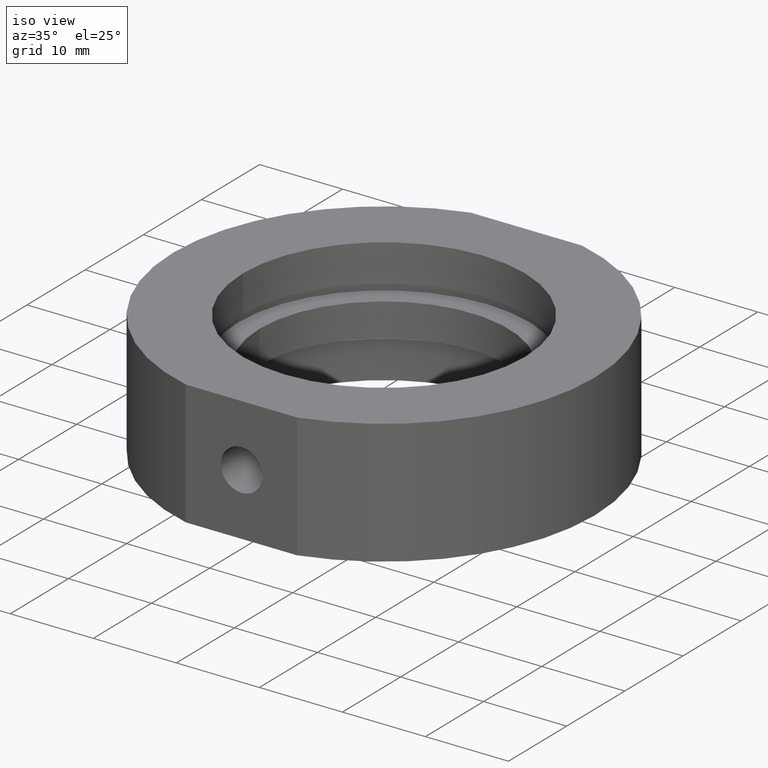
[diagram: clean part render]
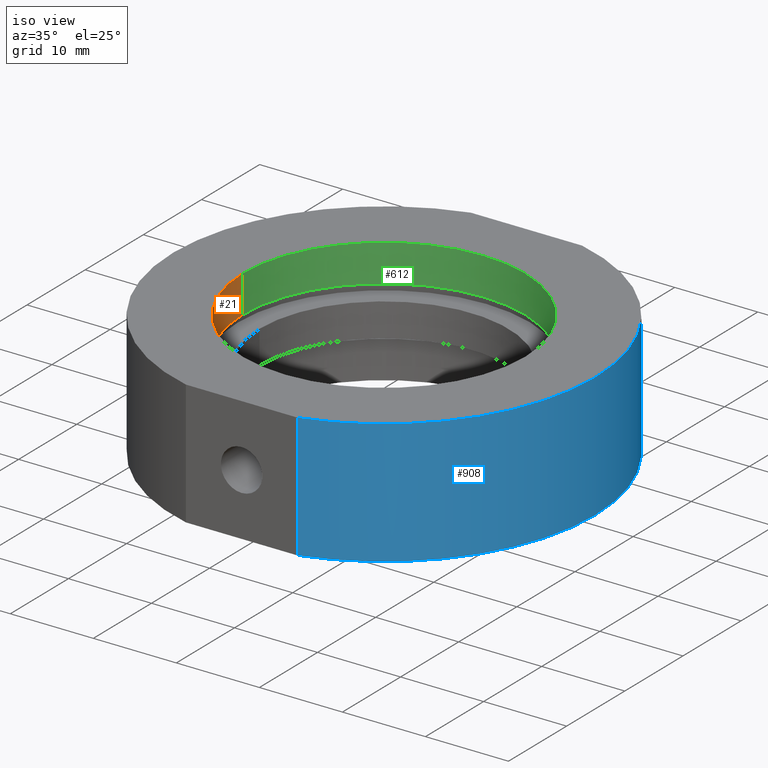
[diagram: same view with three faces highlighted in distinct colors, each labeled with its STEP entity id]
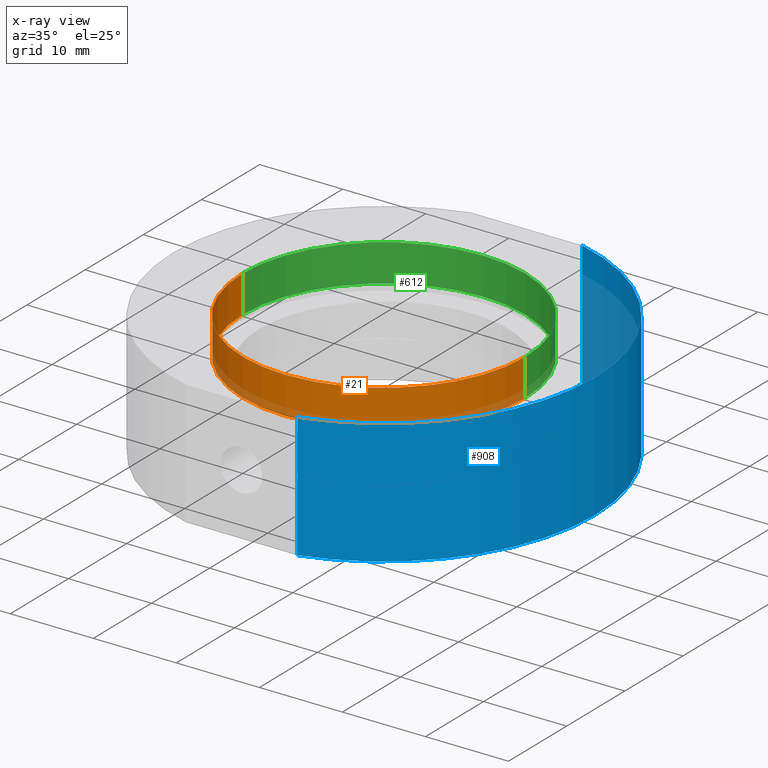
[diagram: x-ray of the same camera — body ghosted, the three highlighted faces saturated]
A machine part, iso view with three faces highlighted in distinct colors.
The next image is the same camera in x-ray (body ghosted, the three faces saturated) — at least one of them is partly hidden behind the body in this view.
Their STEP definitions:

[orange] entity #21 — the highlighted cylindrical surface (partial cylindrical patch) has radius 17 mm, axis along (-0, -0, -1).
#8 = CARTESIAN_POINT ( 'NONE',  ( 0.0000000000000000000, 0.0000000000000000000, -31.93906810035839800 ) ) ;
#21 = ADVANCED_FACE ( 'NONE', ( #341 ), #727, .F. ) ;
#26 = ORIENTED_EDGE ( 'NONE', *, *, #662, .T. ) ;
#102 = CARTESIAN_POINT ( 'NONE',  ( -16.99999999999999300, 0.0000000000000000000, 2.999999999999997800 ) ) ;
#139 = EDGE_CURVE ( 'NONE', #782, #576, #573, .T. ) ;
#141 = DIRECTION ( 'NONE',  ( -1.224646799147350500E-016, -0.0000000000000000000, -1.000000000000000000 ) ) ;
#191 = AXIS2_PLACEMENT_3D ( 'NONE', #8, #448, #844 ) ;
#217 = CIRCLE ( 'NONE', #944, 16.99999999999999600 ) ;
#223 = CARTESIAN_POINT ( 'NONE',  ( -16.99999999999999300, 0.0000000000000000000, 7.500000000000001800 ) ) ;
#250 = CARTESIAN_POINT ( 'NONE',  ( 4.278801791429520600E-015, 0.0000000000000000000, 2.999999999999995600 ) ) ;
#277 = LINE ( 'NONE', #505, #902 ) ;
#279 = EDGE_LOOP ( 'NONE', ( #509, #633, #26, #454 ) ) ;
#327 = CARTESIAN_POINT ( 'NONE',  ( 4.829892851045828800E-015, 0.0000000000000000000, 7.500000000000000000 ) ) ;
#341 = FACE_OUTER_BOUND ( 'NONE', #279, .T. ) ;
#392 = EDGE_CURVE ( 'NONE', #676, #906, #277, .T. ) ;
#447 = CARTESIAN_POINT ( 'NONE',  ( 17.00000000000000000, 2.081899558550499900E-015, 2.999999999999993300 ) ) ;
#448 = DIRECTION ( 'NONE',  ( -1.224646799147350500E-016, -0.0000000000000000000, -1.000000000000000000 ) ) ;
#454 = ORIENTED_EDGE ( 'NONE', *, *, #392, .F. ) ;
#505 = CARTESIAN_POINT ( 'NONE',  ( -16.99999999999999600, 0.0000000000000000000, -31.93906810035839800 ) ) ;
#506 = VECTOR ( 'NONE', #141, 1000.000000000000000 ) ;
#509 = ORIENTED_EDGE ( 'NONE', *, *, #712, .F. ) ;
#531 = AXIS2_PLACEMENT_3D ( 'NONE', #250, #761, #835 ) ;
#553 = DIRECTION ( 'NONE',  ( -1.000000000000000000, 0.0000000000000000000, 1.020425574104004400E-016 ) ) ;
#569 = DIRECTION ( 'NONE',  ( -1.224646799147350500E-016, -0.0000000000000000000, -1.000000000000000000 ) ) ;
#573 = LINE ( 'NONE', #618, #506 ) ;
#576 = VERTEX_POINT ( 'NONE', #447 ) ;
#618 = CARTESIAN_POINT ( 'NONE',  ( 16.99999999999999600, 2.081899558550499900E-015, -31.93906810035839800 ) ) ;
#624 = CARTESIAN_POINT ( 'NONE',  ( 17.00000000000000000, 2.081899558550499900E-015, 7.499999999999998200 ) ) ;
#633 = ORIENTED_EDGE ( 'NONE', *, *, #139, .T. ) ;
#662 = EDGE_CURVE ( 'NONE', #576, #906, #813, .T. ) ;
#676 = VERTEX_POINT ( 'NONE', #223 ) ;
#690 = DIRECTION ( 'NONE',  ( -1.224646799147350500E-016, -0.0000000000000000000, -1.000000000000000000 ) ) ;
#712 = EDGE_CURVE ( 'NONE', #782, #676, #217, .T. ) ;
#727 = CYLINDRICAL_SURFACE ( 'NONE', #191, 16.99999999999999600 ) ;
#761 = DIRECTION ( 'NONE',  ( -1.224646799147350500E-016, -0.0000000000000000000, -1.000000000000000000 ) ) ;
#782 = VERTEX_POINT ( 'NONE', #624 ) ;
#813 = CIRCLE ( 'NONE', #531, 16.99999999999999600 ) ;
#835 = DIRECTION ( 'NONE',  ( -1.000000000000000000, 0.0000000000000000000, 1.275531967630005500E-016 ) ) ;
#844 = DIRECTION ( 'NONE',  ( -1.000000000000000000, 0.0000000000000000000, 0.0000000000000000000 ) ) ;
#902 = VECTOR ( 'NONE', #569, 1000.000000000000000 ) ;
#906 = VERTEX_POINT ( 'NONE', #102 ) ;
#944 = AXIS2_PLACEMENT_3D ( 'NONE', #327, #690, #553 ) ;

[blue] entity #908 — the highlighted cylindrical surface (partial cylindrical patch) has radius 25.4 mm, axis along (-0, -0, -1).
#7 = ORIENTED_EDGE ( 'NONE', *, *, #954, .F. ) ;
#45 = VECTOR ( 'NONE', #246, 1000.000000000000000 ) ;
#72 = DIRECTION ( 'NONE',  ( -1.224646799147350500E-016, -0.0000000000000000000, -1.000000000000000000 ) ) ;
#83 = CARTESIAN_POINT ( 'NONE',  ( 6.701492371106626300, -24.49999999999999300, -31.93906810035839800 ) ) ;
#88 = LINE ( 'NONE', #541, #45 ) ;
#100 = EDGE_CURVE ( 'NONE', #689, #665, #88, .T. ) ;
#108 = CARTESIAN_POINT ( 'NONE',  ( 4.829892851045827200E-015, 0.0000000000000000000, 7.499999999999992900 ) ) ;
#182 = DIRECTION ( 'NONE',  ( -1.224646799147350500E-016, -0.0000000000000000000, -1.000000000000000000 ) ) ;
#198 = ORIENTED_EDGE ( 'NONE', *, *, #631, .T. ) ;
#220 = CARTESIAN_POINT ( 'NONE',  ( 6.701492371106600600, 24.50000000000000000, 7.500000000000000000 ) ) ;
#239 = CIRCLE ( 'NONE', #786, 25.39999999999999900 ) ;
#240 = VECTOR ( 'NONE', #72, 1000.000000000000000 ) ;
#246 = DIRECTION ( 'NONE',  ( 1.224646799147350500E-016, 0.0000000000000000000, 1.000000000000000000 ) ) ;
#309 = FACE_OUTER_BOUND ( 'NONE', #666, .T. ) ;
#329 = ORIENTED_EDGE ( 'NONE', *, *, #100, .T. ) ;
#394 = LINE ( 'NONE', #83, #240 ) ;
#411 = CARTESIAN_POINT ( 'NONE',  ( 6.701492371106597900, -24.50000000000000000, -7.500000000000000900 ) ) ;
#413 = CARTESIAN_POINT ( 'NONE',  ( 6.701492371106600600, -24.50000000000000000, 7.500000000000000000 ) ) ;
#419 = DIRECTION ( 'NONE',  ( -1.224646799147350500E-016, -0.0000000000000000000, -1.000000000000000000 ) ) ;
#425 = CARTESIAN_POINT ( 'NONE',  ( 2.992922652324802700E-015, 0.0000000000000000000, -7.500000000000000000 ) ) ;
#478 = CARTESIAN_POINT ( 'NONE',  ( 6.701492371106597900, 24.50000000000000000, -7.500000000000000900 ) ) ;
#484 = DIRECTION ( 'NONE',  ( -1.224646799147350500E-016, -0.0000000000000000000, -1.000000000000000000 ) ) ;
#541 = CARTESIAN_POINT ( 'NONE',  ( 6.701492371106626300, 24.49999999999999300, -31.93906810035839800 ) ) ;
#567 = CARTESIAN_POINT ( 'NONE',  ( 0.0000000000000000000, 0.0000000000000000000, -31.93906810035839800 ) ) ;
#586 = CYLINDRICAL_SURFACE ( 'NONE', #797, 25.39999999999999900 ) ;
#631 = EDGE_CURVE ( 'NONE', #882, #883, #394, .T. ) ;
#660 = DIRECTION ( 'NONE',  ( -1.000000000000000000, 0.0000000000000000000, 1.365923996832131600E-016 ) ) ;
#665 = VERTEX_POINT ( 'NONE', #220 ) ;
#666 = EDGE_LOOP ( 'NONE', ( #718, #198, #7, #329 ) ) ;
#689 = VERTEX_POINT ( 'NONE', #478 ) ;
#710 = CIRCLE ( 'NONE', #910, 25.39999999999999900 ) ;
#718 = ORIENTED_EDGE ( 'NONE', *, *, #877, .T. ) ;
#785 = DIRECTION ( 'NONE',  ( -1.000000000000000000, 0.0000000000000000000, 1.365923996832131600E-016 ) ) ;
#786 = AXIS2_PLACEMENT_3D ( 'NONE', #425, #419, #660 ) ;
#797 = AXIS2_PLACEMENT_3D ( 'NONE', #567, #182, #923 ) ;
#877 = EDGE_CURVE ( 'NONE', #665, #882, #710, .T. ) ;
#882 = VERTEX_POINT ( 'NONE', #413 ) ;
#883 = VERTEX_POINT ( 'NONE', #411 ) ;
#908 = ADVANCED_FACE ( 'NONE', ( #309 ), #586, .T. ) ;
#910 = AXIS2_PLACEMENT_3D ( 'NONE', #108, #484, #785 ) ;
#923 = DIRECTION ( 'NONE',  ( -1.000000000000000000, 0.0000000000000000000, 0.0000000000000000000 ) ) ;
#954 = EDGE_CURVE ( 'NONE', #689, #883, #239, .T. ) ;

[green] entity #612 — the highlighted cylindrical surface (partial cylindrical patch) has radius 17 mm, axis along (-0, -0, -1).
#9 = DIRECTION ( 'NONE',  ( -1.000000000000000000, 0.0000000000000000000, 1.020425574104004400E-016 ) ) ;
#48 = EDGE_CURVE ( 'NONE', #676, #782, #68, .T. ) ;
#54 = AXIS2_PLACEMENT_3D ( 'NONE', #444, #692, #9 ) ;
#68 = CIRCLE ( 'NONE', #54, 16.99999999999999600 ) ;
#102 = CARTESIAN_POINT ( 'NONE',  ( -16.99999999999999300, 0.0000000000000000000, 2.999999999999997800 ) ) ;
#125 = ORIENTED_EDGE ( 'NONE', *, *, #284, .T. ) ;
#139 = EDGE_CURVE ( 'NONE', #782, #576, #573, .T. ) ;
#141 = DIRECTION ( 'NONE',  ( -1.224646799147350500E-016, -0.0000000000000000000, -1.000000000000000000 ) ) ;
#158 = CYLINDRICAL_SURFACE ( 'NONE', #401, 16.99999999999999600 ) ;
#223 = CARTESIAN_POINT ( 'NONE',  ( -16.99999999999999300, 0.0000000000000000000, 7.500000000000001800 ) ) ;
#235 = DIRECTION ( 'NONE',  ( -1.224646799147350500E-016, -0.0000000000000000000, -1.000000000000000000 ) ) ;
#238 = AXIS2_PLACEMENT_3D ( 'NONE', #480, #555, #784 ) ;
#270 = ORIENTED_EDGE ( 'NONE', *, *, #139, .F. ) ;
#277 = LINE ( 'NONE', #505, #902 ) ;
#284 = EDGE_CURVE ( 'NONE', #906, #576, #417, .T. ) ;
#392 = EDGE_CURVE ( 'NONE', #676, #906, #277, .T. ) ;
#401 = AXIS2_PLACEMENT_3D ( 'NONE', #668, #235, #752 ) ;
#410 = ORIENTED_EDGE ( 'NONE', *, *, #48, .F. ) ;
#417 = CIRCLE ( 'NONE', #238, 16.99999999999999600 ) ;
#444 = CARTESIAN_POINT ( 'NONE',  ( 4.829892851045828800E-015, 0.0000000000000000000, 7.500000000000000000 ) ) ;
#447 = CARTESIAN_POINT ( 'NONE',  ( 17.00000000000000000, 2.081899558550499900E-015, 2.999999999999993300 ) ) ;
#480 = CARTESIAN_POINT ( 'NONE',  ( 4.278801791429520600E-015, 0.0000000000000000000, 2.999999999999995600 ) ) ;
#493 = EDGE_LOOP ( 'NONE', ( #270, #410, #609, #125 ) ) ;
#505 = CARTESIAN_POINT ( 'NONE',  ( -16.99999999999999600, 0.0000000000000000000, -31.93906810035839800 ) ) ;
#506 = VECTOR ( 'NONE', #141, 1000.000000000000000 ) ;
#516 = FACE_OUTER_BOUND ( 'NONE', #493, .T. ) ;
#555 = DIRECTION ( 'NONE',  ( -1.224646799147350500E-016, -0.0000000000000000000, -1.000000000000000000 ) ) ;
#569 = DIRECTION ( 'NONE',  ( -1.224646799147350500E-016, -0.0000000000000000000, -1.000000000000000000 ) ) ;
#573 = LINE ( 'NONE', #618, #506 ) ;
#576 = VERTEX_POINT ( 'NONE', #447 ) ;
#609 = ORIENTED_EDGE ( 'NONE', *, *, #392, .T. ) ;
#612 = ADVANCED_FACE ( 'NONE', ( #516 ), #158, .F. ) ;
#618 = CARTESIAN_POINT ( 'NONE',  ( 16.99999999999999600, 2.081899558550499900E-015, -31.93906810035839800 ) ) ;
#624 = CARTESIAN_POINT ( 'NONE',  ( 17.00000000000000000, 2.081899558550499900E-015, 7.499999999999998200 ) ) ;
#668 = CARTESIAN_POINT ( 'NONE',  ( 0.0000000000000000000, 0.0000000000000000000, -31.93906810035839800 ) ) ;
#676 = VERTEX_POINT ( 'NONE', #223 ) ;
#692 = DIRECTION ( 'NONE',  ( -1.224646799147350500E-016, -0.0000000000000000000, -1.000000000000000000 ) ) ;
#752 = DIRECTION ( 'NONE',  ( -1.000000000000000000, 0.0000000000000000000, 0.0000000000000000000 ) ) ;
#782 = VERTEX_POINT ( 'NONE', #624 ) ;
#784 = DIRECTION ( 'NONE',  ( -1.000000000000000000, 0.0000000000000000000, 1.275531967630005500E-016 ) ) ;
#902 = VECTOR ( 'NONE', #569, 1000.000000000000000 ) ;
#906 = VERTEX_POINT ( 'NONE', #102 ) ;